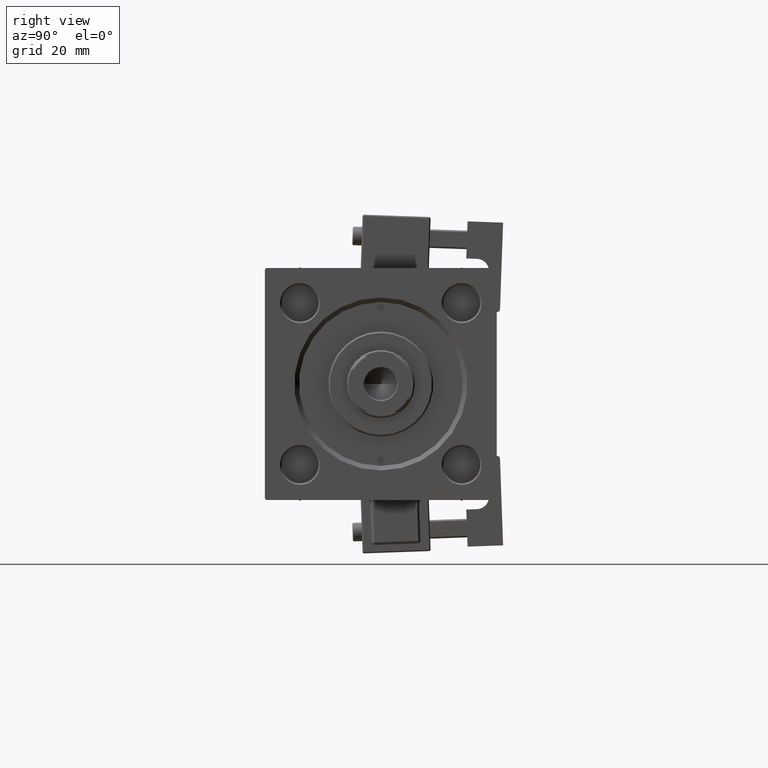
[diagram: clean part render]
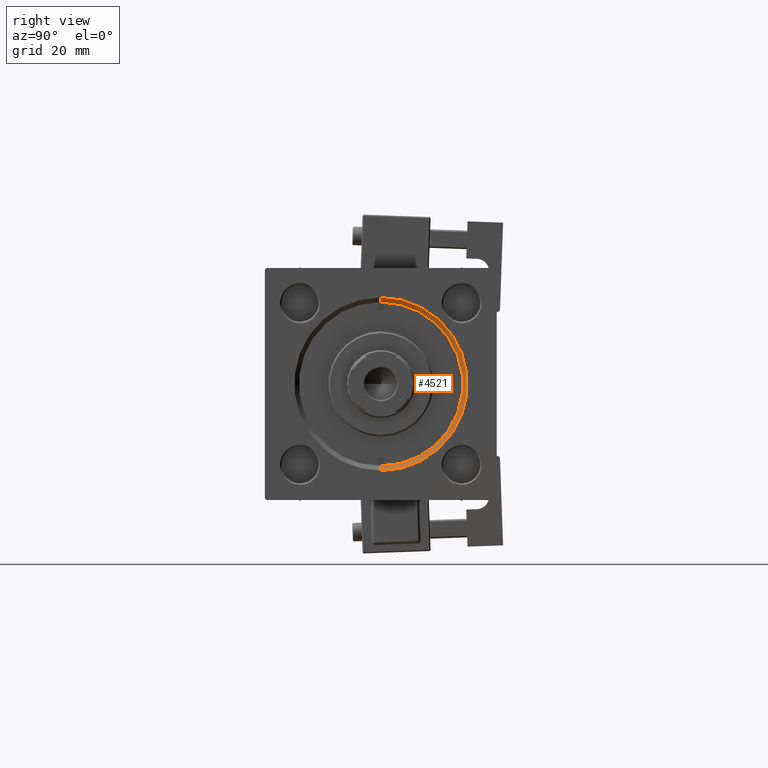
[diagram: same view with one face highlighted and labeled with its STEP entity id]
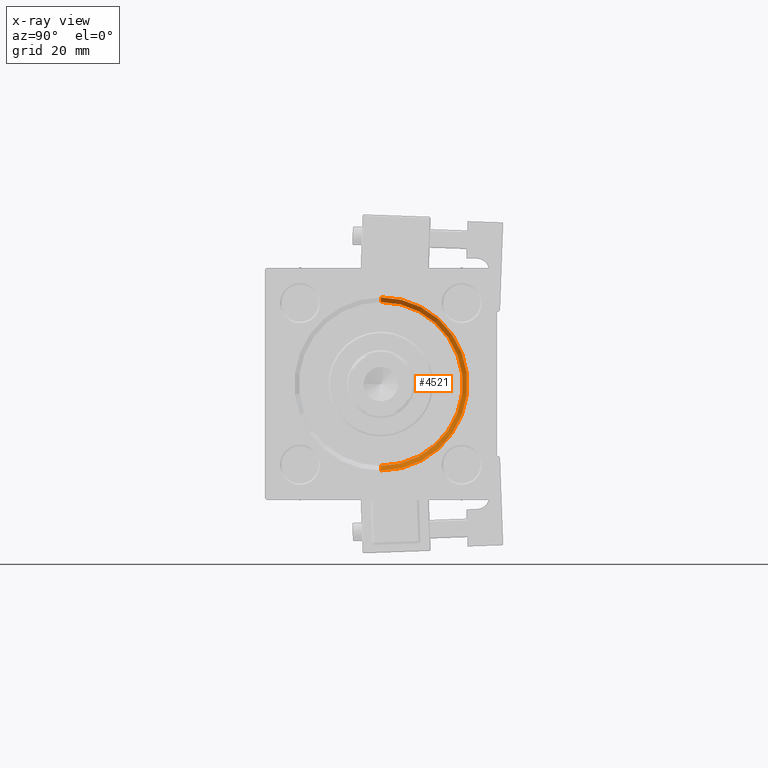
[diagram: x-ray of the same camera — body ghosted, the highlighted face saturated]
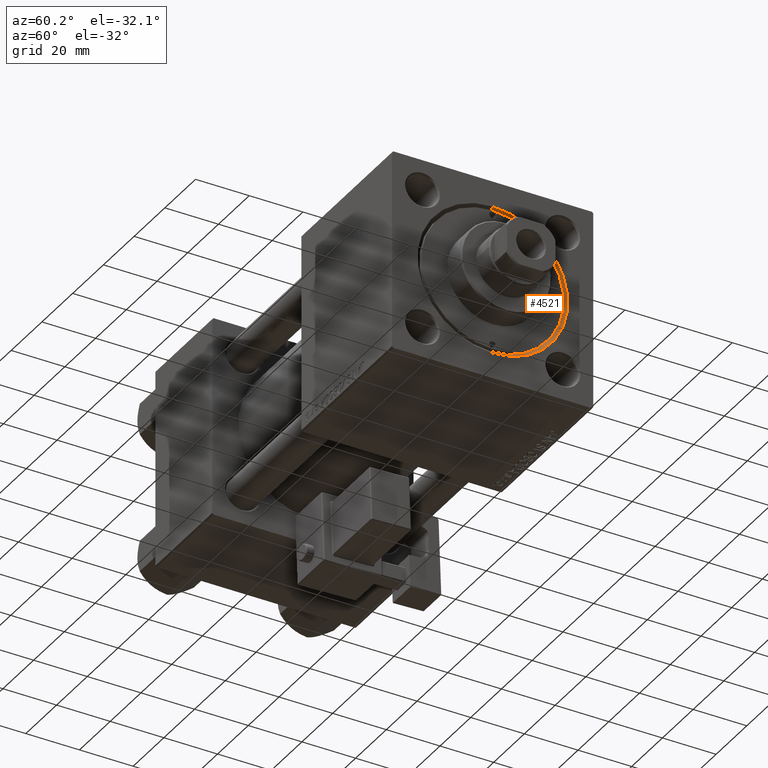
[diagram: same view with one face highlighted and labeled with its STEP entity id]
A machine part, right view. The second image highlights one B-rep face of the part: STEP entity #4521.
The next image is the same camera in x-ray: the body ghosted, the highlighted face saturated — about 0% of this face is hidden behind the body in this view.
A second angle (auxiliary view) of the same face is appended — the face is thin or edge-on in the first view.
In plain terms, the highlighted conical surface has half-angle 45 deg.
Its self-contained STEP definition (entity closure, byte-faithful):
#402 = CIRCLE ( 'NONE', #23315, 27.99999999999999645 ) ;
#1877 = VERTEX_POINT ( 'NONE', #21342 ) ;
#2183 = EDGE_CURVE ( 'NONE', #3892, #1877, #21016, .T. ) ;
#2628 = DIRECTION ( 'NONE',  ( 0.000000000000000000, 0.000000000000000000, -1.000000000000000000 ) ) ;
#3892 = VERTEX_POINT ( 'NONE', #38190 ) ;
#4521 = ADVANCED_FACE ( 'NONE', ( #26815 ), #23095, .F. ) ;
#5050 = DIRECTION ( 'NONE',  ( 0.7071067811865361374, 8.659560562355073374E-17, 0.7071067811865588970 ) ) ;
#6889 = DIRECTION ( 'NONE',  ( 0.000000000000000000, 0.000000000000000000, 1.000000000000000000 ) ) ;
#7798 = CIRCLE ( 'NONE', #44312, 26.50000000000000355 ) ;
#9509 = LINE ( 'NONE', #25738, #40535 ) ;
#10455 = EDGE_CURVE ( 'NONE', #1877, #45242, #402, .T. ) ;
#10960 = EDGE_LOOP ( 'NONE', ( #36564, #26837, #24618, #26498 ) ) ;
#12507 = CARTESIAN_POINT ( 'NONE',  ( 152.5000000000000568, 3.245314017740486554E-15, 26.50000000000000355 ) ) ;
#15108 = CARTESIAN_POINT ( 'NONE',  ( 152.5000000000000568, 0.000000000000000000, 0.000000000000000000 ) ) ;
#16483 = CARTESIAN_POINT ( 'NONE',  ( 154.0000000000000000, 0.000000000000000000, 0.000000000000000000 ) ) ;
#21016 = LINE ( 'NONE', #12507, #50157 ) ;
#21342 = CARTESIAN_POINT ( 'NONE',  ( 154.0000000000000000, 3.429011037612588881E-15, 27.99999999999999645 ) ) ;
#22837 = DIRECTION ( 'NONE',  ( 1.000000000000000000, 0.000000000000000000, 0.000000000000000000 ) ) ;
#23095 = CONICAL_SURFACE ( 'NONE', #33265, 26.50000000000000355, 0.7853981633974644883 ) ;
#23315 = AXIS2_PLACEMENT_3D ( 'NONE', #16483, #32714, #33746 ) ;
#24618 = ORIENTED_EDGE ( 'NONE', *, *, #25593, .T. ) ;
#25593 = EDGE_CURVE ( 'NONE', #36746, #45242, #9509, .T. ) ;
#25738 = CARTESIAN_POINT ( 'NONE',  ( 152.5000000000000568, 0.000000000000000000, -26.50000000000000355 ) ) ;
#26498 = ORIENTED_EDGE ( 'NONE', *, *, #10455, .F. ) ;
#26815 = FACE_OUTER_BOUND ( 'NONE', #10960, .T. ) ;
#26837 = ORIENTED_EDGE ( 'NONE', *, *, #52402, .F. ) ;
#27530 = CARTESIAN_POINT ( 'NONE',  ( 152.5000000000000568, 0.000000000000000000, -26.50000000000000355 ) ) ;
#32714 = DIRECTION ( 'NONE',  ( -1.000000000000000000, -0.000000000000000000, 0.000000000000000000 ) ) ;
#33265 = AXIS2_PLACEMENT_3D ( 'NONE', #43024, #22837, #2628 ) ;
#33746 = DIRECTION ( 'NONE',  ( 0.000000000000000000, 0.000000000000000000, 1.000000000000000000 ) ) ;
#35340 = DIRECTION ( 'NONE',  ( 1.000000000000000000, 0.000000000000000000, 0.000000000000000000 ) ) ;
#36564 = ORIENTED_EDGE ( 'NONE', *, *, #2183, .F. ) ;
#36746 = VERTEX_POINT ( 'NONE', #27530 ) ;
#38190 = CARTESIAN_POINT ( 'NONE',  ( 152.5000000000000568, 3.245314017740486554E-15, 26.50000000000000355 ) ) ;
#40535 = VECTOR ( 'NONE', #41960, 1000.000000000000114 ) ;
#41960 = DIRECTION ( 'NONE',  ( 0.7071067811865361374, 0.000000000000000000, -0.7071067811865588970 ) ) ;
#43024 = CARTESIAN_POINT ( 'NONE',  ( 152.5000000000000568, 0.000000000000000000, 0.000000000000000000 ) ) ;
#44312 = AXIS2_PLACEMENT_3D ( 'NONE', #15108, #35340, #6889 ) ;
#44671 = CARTESIAN_POINT ( 'NONE',  ( 154.0000000000000000, 0.000000000000000000, -27.99999999999999645 ) ) ;
#45242 = VERTEX_POINT ( 'NONE', #44671 ) ;
#50157 = VECTOR ( 'NONE', #5050, 1000.000000000000114 ) ;
#52402 = EDGE_CURVE ( 'NONE', #36746, #3892, #7798, .T. ) ;